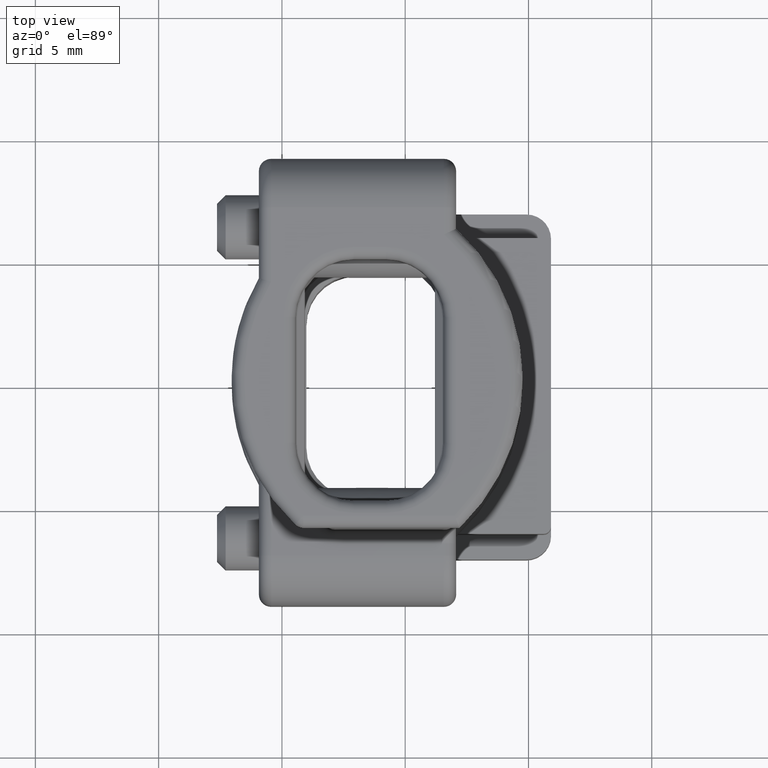
[diagram: clean part render]
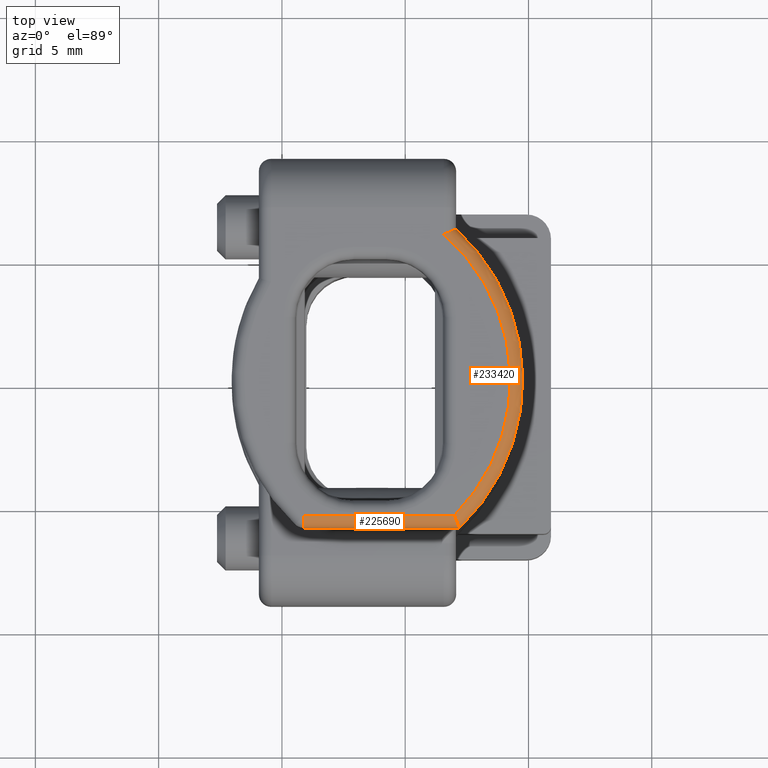
[diagram: same view with one multi-face feature highlighted, each face labeled with its STEP entity id]
A machine part, top view. The highlighted faces form ONE feature: a constant-radius fillet chain: 2 tangent blend faces with common blend radius 0.5 mm. The faces share edges in the B-rep.
Their STEP definitions:
[1] entity #225690 (Cylinder):
#67940=CARTESIAN_POINT('',(19.2244043500691,-45.4831800430109,
-4.5177489973605));
#67950=VERTEX_POINT('',#67940);
#68030=CARTESIAN_POINT('',(19.7244043500691,-45.4831800430109,
-5.0177489973605));
#68040=VERTEX_POINT('',#68030);
#68070=CARTESIAN_POINT('',(19.7244043500691,-45.4831800430109,
-4.5177489973605));
#68080=DIRECTION('',(2.24855296126614E-16,1.,0.));
#68090=DIRECTION('',(1.,-2.24855296126614E-16,0.));
#68100=AXIS2_PLACEMENT_3D('',#68070,#68080,#68090);
#68110=CIRCLE('',#68100,0.5);
#68120=EDGE_CURVE('',#68040,#67950,#68110,.T.);
#216860=CARTESIAN_POINT('',(19.224404350069,-14.7,-4.5177489973605));
#216870=DIRECTION('',(2.24855296126614E-16,-1.,0.));
#216880=VECTOR('',#216870,1.);
#216890=LINE('',#216860,#216880);
#216900=CARTESIAN_POINT('',(19.2244043500687,-39.1561384117228,
-4.5177489973605));
#216910=VERTEX_POINT('',#216900);
#216920=EDGE_CURVE('',#216910,#67950,#216890,.T.);
#224940=CARTESIAN_POINT('',(19.724404350069,-14.7,-4.5177489973605));
#224950=DIRECTION('',(2.24855296126614E-16,-1.,0.));
#224960=DIRECTION('',(-1.,-2.24855296126614E-16,0.));
#224970=AXIS2_PLACEMENT_3D('',#224940,#224950,#224960);
#224980=CYLINDRICAL_SURFACE('',#224970,0.5);
#224990=ORIENTED_EDGE('',*,*,#68120,.T.);
#225000=CARTESIAN_POINT('',(19.724404350069,-14.7,-5.0177489973605));
#225010=DIRECTION('',(2.24855296126614E-16,-1.,0.));
#225020=VECTOR('',#225010,1.);
#225030=LINE('',#225000,#225020);
#225040=CARTESIAN_POINT('',(19.7244043500691,-39.3602960716883,
-5.0177489973605));
#225050=VERTEX_POINT('',#225040);
#225060=EDGE_CURVE('',#225050,#68040,#225030,.T.);
#225070=ORIENTED_EDGE('',*,*,#225060,.T.);
#225080=CARTESIAN_POINT('',(25.2244043500691,-44.8911187952982,
-4.5177489973605));
#225090=DIRECTION('',(0.,0.,1.));
#225100=DIRECTION('',(1.,0.,0.));
#225110=AXIS2_PLACEMENT_3D('',#225080,#225090,#225100);
#225120=TOROIDAL_SURFACE('',#225110,7.8,0.5);
#225130=CARTESIAN_POINT('',(19.7244043500691,-39.3602960716883,
-5.0177489973605));
#225140=CARTESIAN_POINT('',(19.7087656761971,-39.3537927083186,
-5.0177489973605));
#225150=CARTESIAN_POINT('',(19.693053523933,-39.3472703024361,
-5.01701418662097));
#225160=CARTESIAN_POINT('',(19.6773563154615,-39.3407655669717,
-5.01553055832833));
#225170=CARTESIAN_POINT('',(19.6616593171668,-39.334260918602,
-5.01404694990063));
#225180=CARTESIAN_POINT('',(19.6459790984488,-39.3277747024229,
-5.01181456275482));
#225190=CARTESIAN_POINT('',(19.6304091959884,-39.3213452174253,
-5.00883443901945));
#225200=CARTESIAN_POINT('',(19.6148393311023,-39.3149157479438,
-5.0058543224759));
#225210=CARTESIAN_POINT('',(19.5993816023722,-39.3085437583936,
-5.00212679373952));
#225220=CARTESIAN_POINT('',(19.5841284048401,-39.3022665564165,
-4.99766842725487));
#225230=CARTESIAN_POINT('',(19.5688750957499,-39.2959893085294,
-4.9932100281628));
#225240=CARTESIAN_POINT('',(19.5538280738966,-39.2898075649047,
-4.98802139368479));
#225250=CARTESIAN_POINT('',(19.539072863399,-39.2837553472344,
-4.98213271805778));
#225260=CARTESIAN_POINT('',(19.5096149543472,-39.2716724509772,
-4.97037632386172));
#225270=CARTESIAN_POINT('',(19.4811525488218,-39.2600372149494,
-4.95576885729262));
#225280=CARTESIAN_POINT('',(19.4541152403004,-39.2490154725173,
-4.93839587675043));
#225290=CARTESIAN_POINT('',(19.4271284128071,-39.2380143086456,
-4.92105533308768));
#225300=CARTESIAN_POINT('',(19.401629953042,-39.2276522613781,
-4.9009984889326));
#225310=CARTESIAN_POINT('',(19.3781067025142,-39.2181152540731,
-4.8784121910717));
#225320=CARTESIAN_POINT('',(19.3722319362942,-39.2157334536374,
-4.87277142218429));
#225330=CARTESIAN_POINT('',(19.3664869166611,-39.2134057571011,
-4.86697921283103));
#225340=CARTESIAN_POINT('',(19.3608823607538,-39.2111362996518,
-4.86104444341868));
#225350=CARTESIAN_POINT('',(19.355281280045,-39.2088682494174,
-4.85511335395926));
#225360=CARTESIAN_POINT('',(19.3498052587185,-39.2066521980361,
-4.84902403932001));
#225370=CARTESIAN_POINT('',(19.3444592944455,-39.2044899823838,
-4.84277477281108));
#225380=CARTESIAN_POINT('',(19.3337685929238,-39.2001660473585,
-4.83027767414651));
#225390=CARTESIAN_POINT('',(19.3236123107407,-39.1960632082267,
-4.81715373302298));
#225400=CARTESIAN_POINT('',(19.3140933321568,-39.1922214736757,
-4.80348465943273));
#225410=CARTESIAN_POINT('',(19.3045744365346,-39.188379772607,
-4.78981570497372));
#225420=CARTESIAN_POINT('',(19.295695384769,-39.184800189341,
-4.77560500647764));
#225430=CARTESIAN_POINT('',(19.2875401702909,-39.1815150238461,
-4.76095608695027));
#225440=CARTESIAN_POINT('',(19.2793848621868,-39.1782298206359,
-4.74630699924588));
#225450=CARTESIAN_POINT('',(19.2719554131684,-39.1752398379895,
-4.73122362273804));
#225460=CARTESIAN_POINT('',(19.2653094928529,-39.172566850689,
-4.71581946986386));
#225470=CARTESIAN_POINT('',(19.2619848390124,-39.1712296758399,
-4.70811346774785));
#225480=CARTESIAN_POINT('',(19.2588627710417,-39.1699744469362,
-4.70034570661356));
#225490=CARTESIAN_POINT('',(19.2559281630583,-39.1687949264273,
-4.6924775359678));
#225500=CARTESIAN_POINT('',(19.2529925519079,-39.1676150027109,
-4.68460667566518));
#225510=CARTESIAN_POINT('',(19.2502442409791,-39.1665107255651,
-4.67663173451764));
#225520=CARTESIAN_POINT('',(19.2476930687511,-39.1654859137678,
-4.66856794266983));
#225530=CARTESIAN_POINT('',(19.2425905950036,-39.1634362382363,
-4.6524399503073));
#225540=CARTESIAN_POINT('',(19.238279309591,-39.1617054643386,
-4.63595757520321));
#225550=CARTESIAN_POINT('',(19.2348170953961,-39.1603159395462,
-4.61925919419695));
#225560=CARTESIAN_POINT('',(19.2313548953064,-39.1589264204148,
-4.60256088122069));
#225570=CARTESIAN_POINT('',(19.2287430642111,-39.1578786642046,
-4.58565239046081));
#225580=CARTESIAN_POINT('',(19.227005384026,-39.1571816449801,
-4.56868296028572));
#225590=CARTESIAN_POINT('',(19.2252676647938,-39.156484610093,
-4.55171314879455));
#225600=CARTESIAN_POINT('',(19.2244043500691,-39.1561384117223,
-4.53468827826275));
#225610=CARTESIAN_POINT('',(19.2244043500691,-39.1561384117223,
-4.5177489973605));
#225620=B_SPLINE_CURVE_WITH_KNOTS('',3,(#225130,#225140,#225150,#225160,
#225170,#225180,#225190,#225200,#225210,#225220,#225230,#225240,#225250,
#225260,#225270,#225280,#225290,#225300,#225310,#225320,#225330,#225340,
#225350,#225360,#225370,#225380,#225390,#225400,#225410,#225420,#225430,
#225440,#225450,#225460,#225470,#225480,#225490,#225500,#225510,#225520,
#225530,#225540,#225550,#225560,#225570,#225580,#225590,#225600,#225610)
,.UNSPECIFIED.,.F.,.F.,(4,3,3,3,3,3,3,3,3,3,3,3,3,3,3,3,4),(0.,
0.0510051374764006,0.102266388896991,0.153572526594483,0.204717217791418
,0.306533135221174,0.408324269904275,0.433763440004876,0.459215426963319
,0.510387219900138,0.561677847232409,0.612805143171477,0.638245948025648
,0.663752630534848,0.715001640204033,0.766299304633025,0.81733598062036)
,.UNSPECIFIED.);
#225630=SURFACE_CURVE('',#225620,(#225120,#224980),.CURVE_3D.);
#225640=EDGE_CURVE('',#225050,#216910,#225630,.T.);
#225650=ORIENTED_EDGE('',*,*,#225640,.F.);
#225660=ORIENTED_EDGE('',*,*,#216920,.F.);
#225670=EDGE_LOOP('',(#225660,#225650,#225070,#224990));
#225680=FACE_OUTER_BOUND('',#225670,.T.);
#225690=ADVANCED_FACE('',(#225680),#224980,.T.);
[2] entity #233420 (Torus):
#216900=CARTESIAN_POINT('',(19.2244043500687,-39.1561384117228,
-4.5177489973605));
#216910=VERTEX_POINT('',#216900);
#224940=CARTESIAN_POINT('',(19.724404350069,-14.7,-4.5177489973605));
#224950=DIRECTION('',(2.24855296126614E-16,-1.,0.));
#224960=DIRECTION('',(-1.,-2.24855296126614E-16,0.));
#224970=AXIS2_PLACEMENT_3D('',#224940,#224950,#224960);
#224980=CYLINDRICAL_SURFACE('',#224970,0.5);
#225040=CARTESIAN_POINT('',(19.7244043500691,-39.3602960716883,
-5.0177489973605));
#225050=VERTEX_POINT('',#225040);
#225080=CARTESIAN_POINT('',(25.2244043500691,-44.8911187952982,
-4.5177489973605));
#225090=DIRECTION('',(0.,0.,1.));
#225100=DIRECTION('',(1.,0.,0.));
#225110=AXIS2_PLACEMENT_3D('',#225080,#225090,#225100);
#225120=TOROIDAL_SURFACE('',#225110,7.8,0.5);
#225130=CARTESIAN_POINT('',(19.7244043500691,-39.3602960716883,
-5.0177489973605));
#225140=CARTESIAN_POINT('',(19.7087656761971,-39.3537927083186,
-5.0177489973605));
#225150=CARTESIAN_POINT('',(19.693053523933,-39.3472703024361,
-5.01701418662097));
#225160=CARTESIAN_POINT('',(19.6773563154615,-39.3407655669717,
-5.01553055832833));
#225170=CARTESIAN_POINT('',(19.6616593171668,-39.334260918602,
-5.01404694990063));
#225180=CARTESIAN_POINT('',(19.6459790984488,-39.3277747024229,
-5.01181456275482));
#225190=CARTESIAN_POINT('',(19.6304091959884,-39.3213452174253,
-5.00883443901945));
#225200=CARTESIAN_POINT('',(19.6148393311023,-39.3149157479438,
-5.0058543224759));
#225210=CARTESIAN_POINT('',(19.5993816023722,-39.3085437583936,
-5.00212679373952));
#225220=CARTESIAN_POINT('',(19.5841284048401,-39.3022665564165,
-4.99766842725487));
#225230=CARTESIAN_POINT('',(19.5688750957499,-39.2959893085294,
-4.9932100281628));
#225240=CARTESIAN_POINT('',(19.5538280738966,-39.2898075649047,
-4.98802139368479));
#225250=CARTESIAN_POINT('',(19.539072863399,-39.2837553472344,
-4.98213271805778));
#225260=CARTESIAN_POINT('',(19.5096149543472,-39.2716724509772,
-4.97037632386172));
#225270=CARTESIAN_POINT('',(19.4811525488218,-39.2600372149494,
-4.95576885729262));
#225280=CARTESIAN_POINT('',(19.4541152403004,-39.2490154725173,
-4.93839587675043));
#225290=CARTESIAN_POINT('',(19.4271284128071,-39.2380143086456,
-4.92105533308768));
#225300=CARTESIAN_POINT('',(19.401629953042,-39.2276522613781,
-4.9009984889326));
#225310=CARTESIAN_POINT('',(19.3781067025142,-39.2181152540731,
-4.8784121910717));
#225320=CARTESIAN_POINT('',(19.3722319362942,-39.2157334536374,
-4.87277142218429));
#225330=CARTESIAN_POINT('',(19.3664869166611,-39.2134057571011,
-4.86697921283103));
#225340=CARTESIAN_POINT('',(19.3608823607538,-39.2111362996518,
-4.86104444341868));
#225350=CARTESIAN_POINT('',(19.355281280045,-39.2088682494174,
-4.85511335395926));
#225360=CARTESIAN_POINT('',(19.3498052587185,-39.2066521980361,
-4.84902403932001));
#225370=CARTESIAN_POINT('',(19.3444592944455,-39.2044899823838,
-4.84277477281108));
#225380=CARTESIAN_POINT('',(19.3337685929238,-39.2001660473585,
-4.83027767414651));
#225390=CARTESIAN_POINT('',(19.3236123107407,-39.1960632082267,
-4.81715373302298));
#225400=CARTESIAN_POINT('',(19.3140933321568,-39.1922214736757,
-4.80348465943273));
#225410=CARTESIAN_POINT('',(19.3045744365346,-39.188379772607,
-4.78981570497372));
#225420=CARTESIAN_POINT('',(19.295695384769,-39.184800189341,
-4.77560500647764));
#225430=CARTESIAN_POINT('',(19.2875401702909,-39.1815150238461,
-4.76095608695027));
#225440=CARTESIAN_POINT('',(19.2793848621868,-39.1782298206359,
-4.74630699924588));
#225450=CARTESIAN_POINT('',(19.2719554131684,-39.1752398379895,
-4.73122362273804));
#225460=CARTESIAN_POINT('',(19.2653094928529,-39.172566850689,
-4.71581946986386));
#225470=CARTESIAN_POINT('',(19.2619848390124,-39.1712296758399,
-4.70811346774785));
#225480=CARTESIAN_POINT('',(19.2588627710417,-39.1699744469362,
-4.70034570661356));
#225490=CARTESIAN_POINT('',(19.2559281630583,-39.1687949264273,
-4.6924775359678));
#225500=CARTESIAN_POINT('',(19.2529925519079,-39.1676150027109,
-4.68460667566518));
#225510=CARTESIAN_POINT('',(19.2502442409791,-39.1665107255651,
-4.67663173451764));
#225520=CARTESIAN_POINT('',(19.2476930687511,-39.1654859137678,
-4.66856794266983));
#225530=CARTESIAN_POINT('',(19.2425905950036,-39.1634362382363,
-4.6524399503073));
#225540=CARTESIAN_POINT('',(19.238279309591,-39.1617054643386,
-4.63595757520321));
#225550=CARTESIAN_POINT('',(19.2348170953961,-39.1603159395462,
-4.61925919419695));
#225560=CARTESIAN_POINT('',(19.2313548953064,-39.1589264204148,
-4.60256088122069));
#225570=CARTESIAN_POINT('',(19.2287430642111,-39.1578786642046,
-4.58565239046081));
#225580=CARTESIAN_POINT('',(19.227005384026,-39.1571816449801,
-4.56868296028572));
#225590=CARTESIAN_POINT('',(19.2252676647938,-39.156484610093,
-4.55171314879455));
#225600=CARTESIAN_POINT('',(19.2244043500691,-39.1561384117223,
-4.53468827826275));
#225610=CARTESIAN_POINT('',(19.2244043500691,-39.1561384117223,
-4.5177489973605));
#225620=B_SPLINE_CURVE_WITH_KNOTS('',3,(#225130,#225140,#225150,#225160,
#225170,#225180,#225190,#225200,#225210,#225220,#225230,#225240,#225250,
#225260,#225270,#225280,#225290,#225300,#225310,#225320,#225330,#225340,
#225350,#225360,#225370,#225380,#225390,#225400,#225410,#225420,#225430,
#225440,#225450,#225460,#225470,#225480,#225490,#225500,#225510,#225520,
#225530,#225540,#225550,#225560,#225570,#225580,#225590,#225600,#225610)
,.UNSPECIFIED.,.F.,.F.,(4,3,3,3,3,3,3,3,3,3,3,3,3,3,3,3,4),(0.,
0.0510051374764006,0.102266388896991,0.153572526594483,0.204717217791418
,0.306533135221174,0.408324269904275,0.433763440004876,0.459215426963319
,0.510387219900138,0.561677847232409,0.612805143171477,0.638245948025648
,0.663752630534848,0.715001640204033,0.766299304633025,0.81733598062036)
,.UNSPECIFIED.);
#225630=SURFACE_CURVE('',#225620,(#225120,#224980),.CURVE_3D.);
#225640=EDGE_CURVE('',#225050,#216910,#225630,.T.);
#225790=CARTESIAN_POINT('',(31.1260993531472,-39.7911191785686,
-5.0177489973605));
#225800=VERTEX_POINT('',#225790);
#225850=CARTESIAN_POINT('',(25.2244043500691,-44.8911187952982,
-5.0177489973605));
#225860=DIRECTION('',(0.,0.,1.));
#225870=DIRECTION('',(1.,0.,0.));
#225880=AXIS2_PLACEMENT_3D('',#225850,#225860,#225870);
#225890=CIRCLE('',#225880,7.8);
#225900=EDGE_CURVE('',#225800,#225050,#225890,.T.);
#232390=CARTESIAN_POINT('',(31.3505780574192,-39.2911191785686,
-4.5177489973605));
#232400=VERTEX_POINT('',#232390);
#232460=CARTESIAN_POINT('',(25.2244043500691,-44.8911187952982,
-4.5177489973605));
#232470=DIRECTION('',(0.,0.,1.));
#232480=DIRECTION('',(1.,0.,0.));
#232490=AXIS2_PLACEMENT_3D('',#232460,#232470,#232480);
#232500=CIRCLE('',#232490,8.3);
#232510=EDGE_CURVE('',#232400,#216910,#232500,.T.);
#232720=CARTESIAN_POINT('',(0.,-39.7911191785686,-4.5177489973605));
#232730=DIRECTION('',(1.,0.,0.));
#232740=DIRECTION('',(0.,-1.,0.));
#232750=AXIS2_PLACEMENT_3D('',#232720,#232730,#232740);
#232760=CYLINDRICAL_SURFACE('',#232750,0.5);
#232800=CARTESIAN_POINT('',(31.1260993531472,-39.7911191785686,
-5.0177489973605));
#232810=CARTESIAN_POINT('',(31.1332118771913,-39.7755725335125,
-5.0177489973605));
#232820=CARTESIAN_POINT('',(31.1403297043945,-39.7599860912369,
-5.01702287135242));
#232830=CARTESIAN_POINT('',(31.1474144159235,-39.7444443091098,
-5.01556568707772));
#232840=CARTESIAN_POINT('',(31.1544991108564,-39.7289025633896,
-5.0141085062165));
#232850=CARTESIAN_POINT('',(31.1615500085874,-39.7134069761424,
-5.01192038905513));
#232860=CARTESIAN_POINT('',(31.1685291514451,-39.6980422019707,
-5.00900929132633));
#232870=CARTESIAN_POINT('',(31.1755093070839,-39.6826751981334,
-5.00609777115238));
#232880=CARTESIAN_POINT('',(31.1824071569832,-39.6674623741072,
-5.00247152427989));
#232890=CARTESIAN_POINT('',(31.1892408207018,-39.6523654552959,
-4.99811074050618));
#232900=CARTESIAN_POINT('',(31.1960714405467,-39.6372752610056,
-4.99375189912764));
#232910=CARTESIAN_POINT('',(31.2028207999753,-39.6223385730755,
-4.98866577459967));
#232920=CARTESIAN_POINT('',(31.2094495337954,-39.6076447709301,
-4.98286956424796));
#232930=CARTESIAN_POINT('',(31.222698653969,-39.5782756703274,
-4.97128444262666));
#232940=CARTESIAN_POINT('',(31.2354766091359,-39.5498528172202,
-4.9568615529951));
#232950=CARTESIAN_POINT('',(31.2476116057554,-39.5227818582161,
-4.93964363172556));
#232960=CARTESIAN_POINT('',(31.2536751814878,-39.509255129267,
-4.93104023669832));
#232970=CARTESIAN_POINT('',(31.2595547858382,-39.4961183750941,
-4.92177232961929));
#232980=CARTESIAN_POINT('',(31.2652388085175,-39.4834012509498,
-4.91184248502807));
#232990=CARTESIAN_POINT('',(31.2709258952447,-39.4706772714708,
-4.90190728762222));
#233000=CARTESIAN_POINT('',(31.2764238145885,-39.4583584932634,
-4.89129439776189));
#233010=CARTESIAN_POINT('',(31.2816901075367,-39.4465438870628,
-4.88005807602632));
#233020=CARTESIAN_POINT('',(31.2869596341878,-39.4347220262474,
-4.86881485476458));
#233030=CARTESIAN_POINT('',(31.2919833650092,-39.4234362032015,
-4.85698304256097));
#233040=CARTESIAN_POINT('',(31.2967629422251,-39.4126868318481,
-4.84453479716775));
#233050=CARTESIAN_POINT('',(31.3015465197648,-39.4019284636811,
-4.83207613306809));
#233060=CARTESIAN_POINT('',(31.306093512287,-39.3916894246951,
-4.81897173415064));
#233070=CARTESIAN_POINT('',(31.310357241445,-39.3820787390976,
-4.80530059077879));
#233080=CARTESIAN_POINT('',(31.314620921859,-39.3724681633715,
-4.79162960369841));
#233090=CARTESIAN_POINT('',(31.3186001590038,-39.3634886319593,
-4.77739535737471));
#233100=CARTESIAN_POINT('',(31.3222564950451,-39.3552309306973,
-4.76270090155343));
#233110=CARTESIAN_POINT('',(31.3259128661659,-39.3469731502096,
-4.74800630475091));
#233120=CARTESIAN_POINT('',(31.3292453758224,-39.3394394003774,
-4.73285564394971));
#233130=CARTESIAN_POINT('',(31.3322273047078,-39.3326938110773,
-4.71736408306411));
#233140=CARTESIAN_POINT('',(31.3337184194784,-39.3293206763622,
-4.70961752164612));
#233150=CARTESIAN_POINT('',(31.3351213167257,-39.3261458724348,
-4.70179020877888));
#233160=CARTESIAN_POINT('',(31.3364357309356,-39.3231704132654,
-4.69388517493677));
#233170=CARTESIAN_POINT('',(31.3377511876018,-39.3201925942716,
-4.68597387164531));
#233180=CARTESIAN_POINT('',(31.3389831517504,-39.3174028191308,
-4.67795314755513));
#233190=CARTESIAN_POINT('',(31.3401270597637,-39.3148117734931,
-4.66983862840183));
#233200=CARTESIAN_POINT('',(31.3424149370176,-39.3096295435329,
-4.6536091557681));
#233210=CARTESIAN_POINT('',(31.3443493621725,-39.3052450573158,
-4.63700555551646));
#233220=CARTESIAN_POINT('',(31.3459032622408,-39.301722021676,
-4.62017176253246));
#233230=CARTESIAN_POINT('',(31.3474571537619,-39.2981990054147,
-4.60333806214308));
#233240=CARTESIAN_POINT('',(31.348629873728,-39.2955389254936,
-4.58628065982229));
#233250=CARTESIAN_POINT('',(31.349410123787,-39.2937689123683,
-4.56915631892541));
#233260=CARTESIAN_POINT('',(31.3501903921464,-39.2919988577284,
-4.55203157638811));
#233270=CARTESIAN_POINT('',(31.3505780574192,-39.2911191785686,
-4.53484650030323));
#233280=CARTESIAN_POINT('',(31.3505780574192,-39.2911191785686,
-4.5177489973605));
#233290=B_SPLINE_CURVE_WITH_KNOTS('',3,(#232800,#232810,#232820,#232830,
#232840,#232850,#232860,#232870,#232880,#232890,#232900,#232910,#232920,
#232930,#232940,#232950,#232960,#232970,#232980,#232990,#233000,#233010,
#233020,#233030,#233040,#233050,#233060,#233070,#233080,#233090,#233100,
#233110,#233120,#233130,#233140,#233150,#233160,#233170,#233180,#233190,
#233200,#233210,#233220,#233230,#233240,#233250,#233260,#233270,#233280)
,.UNSPECIFIED.,.F.,.F.,(4,3,3,3,3,3,3,3,3,3,3,3,3,3,3,3,4),(0.,
0.0513734878579907,0.102789365648628,0.154129018633098,0.205532567181011
,0.308271224401758,0.359616835681084,0.411011233402675,0.46236804616288,
0.513974940354935,0.565739494523597,0.617365995445813,0.643053057679766,
0.668780344519726,0.720493457819308,0.772271311475425,0.823787278488826)
,.UNSPECIFIED.);
#233300=SURFACE_CURVE('',#233290,(#225120,#232760),.CURVE_3D.);
#233310=EDGE_CURVE('',#225800,#232400,#233300,.T.);
#233360=ORIENTED_EDGE('',*,*,#233310,.F.);
#233370=ORIENTED_EDGE('',*,*,#232510,.F.);
#233380=ORIENTED_EDGE('',*,*,#225640,.T.);
#233390=ORIENTED_EDGE('',*,*,#225900,.T.);
#233400=EDGE_LOOP('',(#233390,#233380,#233370,#233360));
#233410=FACE_OUTER_BOUND('',#233400,.T.);
#233420=ADVANCED_FACE('',(#233410),#225120,.T.);